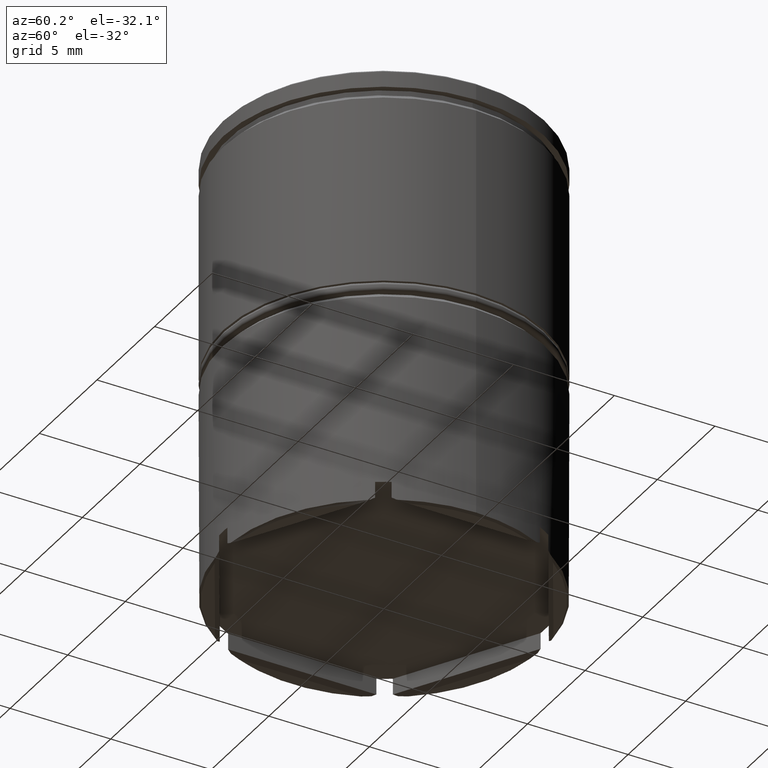
[diagram: clean part render]
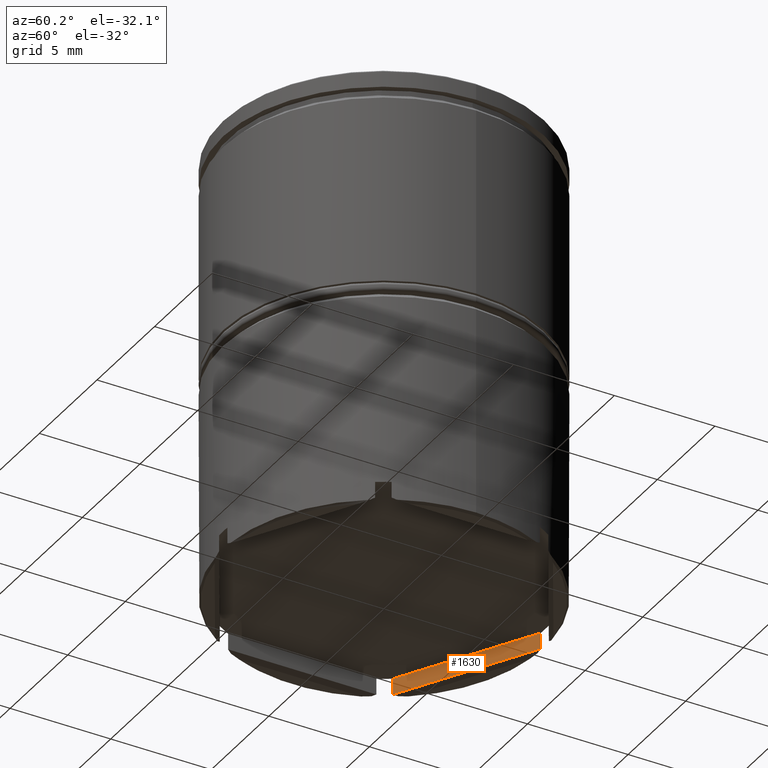
[diagram: same view with one face highlighted and labeled with its STEP entity id]
A machine part, auxiliary view. The second image highlights one B-rep face of the part: STEP entity #1630.
In plain terms, the highlighted planar face has unit normal (-0.5, 0.866, 0).
Its self-contained STEP definition (entity closure, byte-faithful):
#72 = CARTESIAN_POINT ( 'NONE',  ( -6.742569498068907485, 4.305549507752846061, -20.99999999999999645 ) ) ;
#127 = CARTESIAN_POINT ( 'NONE',  ( -0.3574305019310927700, 7.992011225986188627, -20.99999999999999645 ) ) ;
#129 = CARTESIAN_POINT ( 'NONE',  ( -6.742569498068905709, 4.305549507752851390, 0.000000000000000000 ) ) ;
#149 = DIRECTION ( 'NONE',  ( -0.000000000000000000, -0.000000000000000000, 1.000000000000000000 ) ) ;
#163 = AXIS2_PLACEMENT_3D ( 'NONE', #587, #222, #338 ) ;
#204 = EDGE_LOOP ( 'NONE', ( #953, #1538, #1330, #1307 ) ) ;
#222 = DIRECTION ( 'NONE',  ( -0.4999999999999998335, 0.8660254037844387076, 0.000000000000000000 ) ) ;
#223 = VERTEX_POINT ( 'NONE', #1240 ) ;
#256 = CARTESIAN_POINT ( 'NONE',  ( -6.742569498068905709, 4.305549507752851390, -21.80000000000000782 ) ) ;
#327 = EDGE_CURVE ( 'NONE', #1433, #223, #799, .T. ) ;
#338 = DIRECTION ( 'NONE',  ( -0.8660254037844387076, -0.4999999999999998335, 0.000000000000000000 ) ) ;
#517 = EDGE_CURVE ( 'NONE', #223, #571, #882, .T. ) ;
#537 = CARTESIAN_POINT ( 'NONE',  ( -0.5499999999999972689, 7.880831174438397646, -21.80000000000000782 ) ) ;
#571 = VERTEX_POINT ( 'NONE', #127 ) ;
#587 = CARTESIAN_POINT ( 'NONE',  ( -7.100000000000005862, 4.099186911246346376, -20.99999999999999645 ) ) ;
#717 = LINE ( 'NONE', #1094, #1082 ) ;
#793 = EDGE_CURVE ( 'NONE', #798, #571, #717, .T. ) ;
#798 = VERTEX_POINT ( 'NONE', #72 ) ;
#799 = LINE ( 'NONE', #537, #1582 ) ;
#832 = PLANE ( 'NONE',  #163 ) ;
#882 = LINE ( 'NONE', #1005, #1287 ) ;
#953 = ORIENTED_EDGE ( 'NONE', *, *, #1380, .T. ) ;
#1005 = CARTESIAN_POINT ( 'NONE',  ( -0.3574305019310984322, 7.992011225986190404, 0.000000000000000000 ) ) ;
#1082 = VECTOR ( 'NONE', #1464, 1000.000000000000114 ) ;
#1094 = CARTESIAN_POINT ( 'NONE',  ( -7.100000000000005862, 4.099186911246346376, -20.99999999999999645 ) ) ;
#1130 = DIRECTION ( 'NONE',  ( 0.000000000000000000, 0.000000000000000000, -1.000000000000000000 ) ) ;
#1240 = CARTESIAN_POINT ( 'NONE',  ( -0.3574305019310984322, 7.992011225986190404, -21.80000000000000782 ) ) ;
#1287 = VECTOR ( 'NONE', #149, 1000.000000000000000 ) ;
#1307 = ORIENTED_EDGE ( 'NONE', *, *, #793, .F. ) ;
#1330 = ORIENTED_EDGE ( 'NONE', *, *, #517, .T. ) ;
#1362 = LINE ( 'NONE', #129, #1395 ) ;
#1380 = EDGE_CURVE ( 'NONE', #798, #1433, #1362, .T. ) ;
#1395 = VECTOR ( 'NONE', #1130, 1000.000000000000000 ) ;
#1433 = VERTEX_POINT ( 'NONE', #256 ) ;
#1464 = DIRECTION ( 'NONE',  ( 0.8660254037844387076, 0.4999999999999998335, 0.000000000000000000 ) ) ;
#1538 = ORIENTED_EDGE ( 'NONE', *, *, #327, .T. ) ;
#1554 = DIRECTION ( 'NONE',  ( 0.8660254037844387076, 0.4999999999999998335, 0.000000000000000000 ) ) ;
#1582 = VECTOR ( 'NONE', #1554, 1000.000000000000114 ) ;
#1583 = FACE_OUTER_BOUND ( 'NONE', #204, .T. ) ;
#1630 = ADVANCED_FACE ( 'NONE', ( #1583 ), #832, .F. ) ;